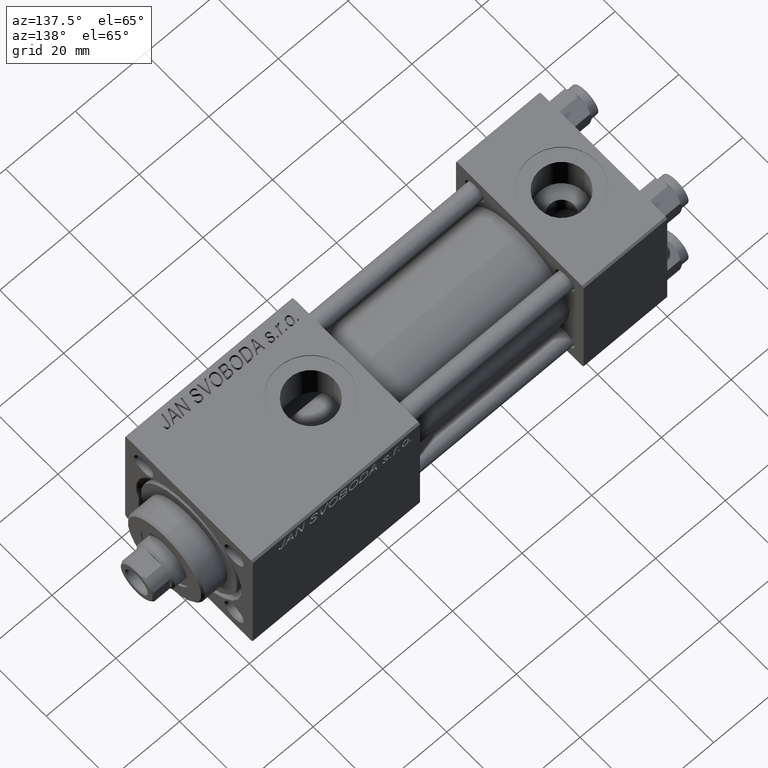
[diagram: clean part render]
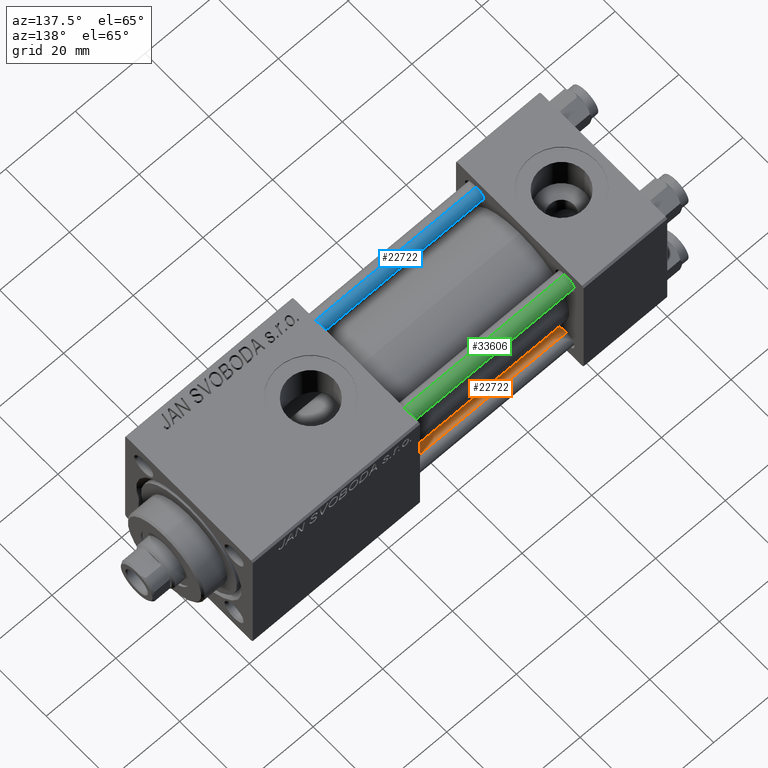
[diagram: same view with three faces highlighted in distinct colors, each labeled with its STEP entity id]
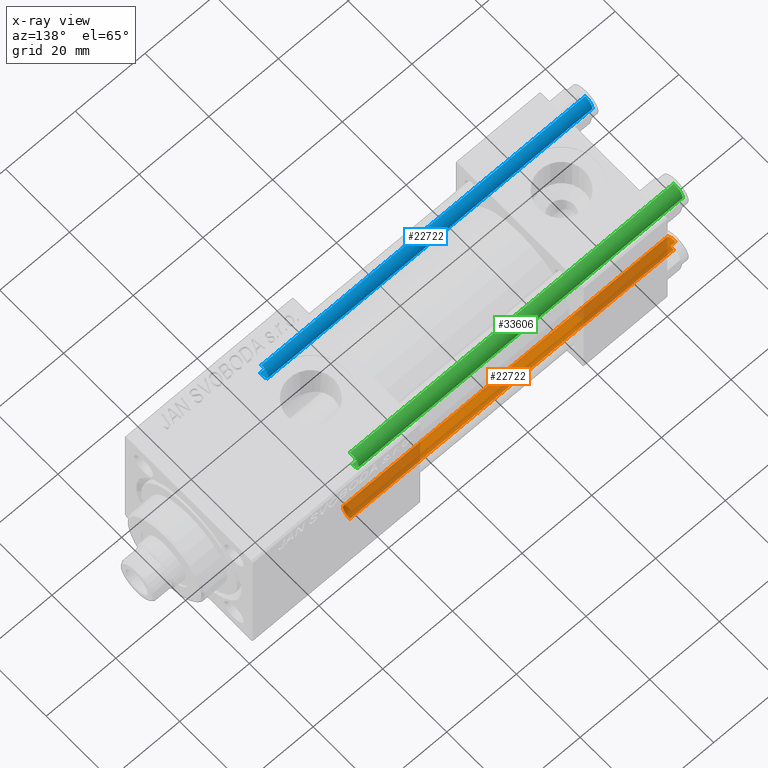
[diagram: x-ray of the same camera — body ghosted, the three highlighted faces saturated]
A machine part, auxiliary view with three faces highlighted in distinct colors.
The next image is the same camera in x-ray (body ghosted, the three faces saturated) — at least one of them is partly hidden behind the body in this view.
Their STEP definitions:

[orange] entity #22722 — the highlighted cylindrical surface (edge-blend (fillet) strip) has radius 2.5 mm, axis along (1, -0, 0).
#153 = CIRCLE ( 'NONE', #36363, 2.500000000000000000 ) ;
#441 = DIRECTION ( 'NONE',  ( -0.000000000000000000, -0.000000000000000000, -1.000000000000000000 ) ) ;
#3326 = DIRECTION ( 'NONE',  ( 1.000000000000000000, 0.000000000000000000, 0.000000000000000000 ) ) ;
#4578 = DIRECTION ( 'NONE',  ( -0.000000000000000000, -0.000000000000000000, -1.000000000000000000 ) ) ;
#5532 = CARTESIAN_POINT ( 'NONE',  ( -2.500000000000000000, 0.000000000000000000, 94.00000000000000000 ) ) ;
#7022 = ORIENTED_EDGE ( 'NONE', *, *, #20169, .T. ) ;
#7613 = VECTOR ( 'NONE', #25574, 1000.000000000000000 ) ;
#7858 = CARTESIAN_POINT ( 'NONE',  ( 0.000000000000000000, 0.000000000000000000, 0.5000000000000004441 ) ) ;
#9465 = VERTEX_POINT ( 'NONE', #40455 ) ;
#12454 = EDGE_CURVE ( 'NONE', #50126, #43928, #30352, .T. ) ;
#13643 = FACE_OUTER_BOUND ( 'NONE', #20688, .T. ) ;
#15207 = CARTESIAN_POINT ( 'NONE',  ( 0.000000000000000000, 0.000000000000000000, 93.50000000000001421 ) ) ;
#16202 = EDGE_CURVE ( 'NONE', #43928, #9465, #30047, .T. ) ;
#16266 = ORIENTED_EDGE ( 'NONE', *, *, #20002, .F. ) ;
#18873 = ORIENTED_EDGE ( 'NONE', *, *, #16202, .T. ) ;
#20002 = EDGE_CURVE ( 'NONE', #50126, #34823, #49398, .T. ) ;
#20009 = DIRECTION ( 'NONE',  ( 1.000000000000000000, 0.000000000000000000, 0.000000000000000000 ) ) ;
#20169 = EDGE_CURVE ( 'NONE', #9465, #34823, #153, .T. ) ;
#20505 = DIRECTION ( 'NONE',  ( -1.000000000000000000, 0.000000000000000000, 0.000000000000000000 ) ) ;
#20688 = EDGE_LOOP ( 'NONE', ( #16266, #33507, #18873, #7022 ) ) ;
#20943 = CARTESIAN_POINT ( 'NONE',  ( 2.500000000000000000, 3.061616997868383141E-16, 94.00000000000000000 ) ) ;
#22722 = ADVANCED_FACE ( 'NONE', ( #13643 ), #40529, .T. ) ;
#23389 = DIRECTION ( 'NONE',  ( 0.000000000000000000, 0.000000000000000000, -1.000000000000000000 ) ) ;
#25574 = DIRECTION ( 'NONE',  ( -0.000000000000000000, -0.000000000000000000, -1.000000000000000000 ) ) ;
#26280 = VECTOR ( 'NONE', #4578, 1000.000000000000000 ) ;
#27826 = AXIS2_PLACEMENT_3D ( 'NONE', #15207, #23389, #3326 ) ;
#29715 = CARTESIAN_POINT ( 'NONE',  ( 0.000000000000000000, 0.000000000000000000, 94.00000000000000000 ) ) ;
#30047 = LINE ( 'NONE', #5532, #7613 ) ;
#30352 = CIRCLE ( 'NONE', #27826, 2.500000000000000000 ) ;
#33507 = ORIENTED_EDGE ( 'NONE', *, *, #12454, .T. ) ;
#34823 = VERTEX_POINT ( 'NONE', #50097 ) ;
#36363 = AXIS2_PLACEMENT_3D ( 'NONE', #7858, #39519, #20009 ) ;
#36425 = CARTESIAN_POINT ( 'NONE',  ( -2.500000000000000000, 0.000000000000000000, 93.50000000000001421 ) ) ;
#39519 = DIRECTION ( 'NONE',  ( -0.000000000000000000, -0.000000000000000000, 1.000000000000000000 ) ) ;
#40455 = CARTESIAN_POINT ( 'NONE',  ( -2.500000000000000000, 0.000000000000000000, 0.5000000000000004441 ) ) ;
#40529 = CYLINDRICAL_SURFACE ( 'NONE', #51605, 2.500000000000000000 ) ;
#43928 = VERTEX_POINT ( 'NONE', #36425 ) ;
#49398 = LINE ( 'NONE', #20943, #26280 ) ;
#50097 = CARTESIAN_POINT ( 'NONE',  ( 2.500000000000000000, 3.061616997868383141E-16, 0.5000000000000004441 ) ) ;
#50126 = VERTEX_POINT ( 'NONE', #50348 ) ;
#50348 = CARTESIAN_POINT ( 'NONE',  ( 2.500000000000000000, 3.061616997868383141E-16, 93.50000000000001421 ) ) ;
#51605 = AXIS2_PLACEMENT_3D ( 'NONE', #29715, #441, #20505 ) ;

[blue] entity #22722 — the highlighted cylindrical surface (edge-blend (fillet) strip) has radius 2.5 mm, axis along (1, 0, -0).
#153 = CIRCLE ( 'NONE', #36363, 2.500000000000000000 ) ;
#441 = DIRECTION ( 'NONE',  ( -0.000000000000000000, -0.000000000000000000, -1.000000000000000000 ) ) ;
#3326 = DIRECTION ( 'NONE',  ( 1.000000000000000000, 0.000000000000000000, 0.000000000000000000 ) ) ;
#4578 = DIRECTION ( 'NONE',  ( -0.000000000000000000, -0.000000000000000000, -1.000000000000000000 ) ) ;
#5532 = CARTESIAN_POINT ( 'NONE',  ( -2.500000000000000000, 0.000000000000000000, 94.00000000000000000 ) ) ;
#7022 = ORIENTED_EDGE ( 'NONE', *, *, #20169, .T. ) ;
#7613 = VECTOR ( 'NONE', #25574, 1000.000000000000000 ) ;
#7858 = CARTESIAN_POINT ( 'NONE',  ( 0.000000000000000000, 0.000000000000000000, 0.5000000000000004441 ) ) ;
#9465 = VERTEX_POINT ( 'NONE', #40455 ) ;
#12454 = EDGE_CURVE ( 'NONE', #50126, #43928, #30352, .T. ) ;
#13643 = FACE_OUTER_BOUND ( 'NONE', #20688, .T. ) ;
#15207 = CARTESIAN_POINT ( 'NONE',  ( 0.000000000000000000, 0.000000000000000000, 93.50000000000001421 ) ) ;
#16202 = EDGE_CURVE ( 'NONE', #43928, #9465, #30047, .T. ) ;
#16266 = ORIENTED_EDGE ( 'NONE', *, *, #20002, .F. ) ;
#18873 = ORIENTED_EDGE ( 'NONE', *, *, #16202, .T. ) ;
#20002 = EDGE_CURVE ( 'NONE', #50126, #34823, #49398, .T. ) ;
#20009 = DIRECTION ( 'NONE',  ( 1.000000000000000000, 0.000000000000000000, 0.000000000000000000 ) ) ;
#20169 = EDGE_CURVE ( 'NONE', #9465, #34823, #153, .T. ) ;
#20505 = DIRECTION ( 'NONE',  ( -1.000000000000000000, 0.000000000000000000, 0.000000000000000000 ) ) ;
#20688 = EDGE_LOOP ( 'NONE', ( #16266, #33507, #18873, #7022 ) ) ;
#20943 = CARTESIAN_POINT ( 'NONE',  ( 2.500000000000000000, 3.061616997868383141E-16, 94.00000000000000000 ) ) ;
#22722 = ADVANCED_FACE ( 'NONE', ( #13643 ), #40529, .T. ) ;
#23389 = DIRECTION ( 'NONE',  ( 0.000000000000000000, 0.000000000000000000, -1.000000000000000000 ) ) ;
#25574 = DIRECTION ( 'NONE',  ( -0.000000000000000000, -0.000000000000000000, -1.000000000000000000 ) ) ;
#26280 = VECTOR ( 'NONE', #4578, 1000.000000000000000 ) ;
#27826 = AXIS2_PLACEMENT_3D ( 'NONE', #15207, #23389, #3326 ) ;
#29715 = CARTESIAN_POINT ( 'NONE',  ( 0.000000000000000000, 0.000000000000000000, 94.00000000000000000 ) ) ;
#30047 = LINE ( 'NONE', #5532, #7613 ) ;
#30352 = CIRCLE ( 'NONE', #27826, 2.500000000000000000 ) ;
#33507 = ORIENTED_EDGE ( 'NONE', *, *, #12454, .T. ) ;
#34823 = VERTEX_POINT ( 'NONE', #50097 ) ;
#36363 = AXIS2_PLACEMENT_3D ( 'NONE', #7858, #39519, #20009 ) ;
#36425 = CARTESIAN_POINT ( 'NONE',  ( -2.500000000000000000, 0.000000000000000000, 93.50000000000001421 ) ) ;
#39519 = DIRECTION ( 'NONE',  ( -0.000000000000000000, -0.000000000000000000, 1.000000000000000000 ) ) ;
#40455 = CARTESIAN_POINT ( 'NONE',  ( -2.500000000000000000, 0.000000000000000000, 0.5000000000000004441 ) ) ;
#40529 = CYLINDRICAL_SURFACE ( 'NONE', #51605, 2.500000000000000000 ) ;
#43928 = VERTEX_POINT ( 'NONE', #36425 ) ;
#49398 = LINE ( 'NONE', #20943, #26280 ) ;
#50097 = CARTESIAN_POINT ( 'NONE',  ( 2.500000000000000000, 3.061616997868383141E-16, 0.5000000000000004441 ) ) ;
#50126 = VERTEX_POINT ( 'NONE', #50348 ) ;
#50348 = CARTESIAN_POINT ( 'NONE',  ( 2.500000000000000000, 3.061616997868383141E-16, 93.50000000000001421 ) ) ;
#51605 = AXIS2_PLACEMENT_3D ( 'NONE', #29715, #441, #20505 ) ;

[green] entity #33606 — the highlighted cylindrical surface (edge-blend (fillet) strip) has radius 2.5 mm, axis along (-1, 0, 0).
#2064 = CARTESIAN_POINT ( 'NONE',  ( 0.000000000000000000, 0.000000000000000000, 0.5000000000000004441 ) ) ;
#4578 = DIRECTION ( 'NONE',  ( -0.000000000000000000, -0.000000000000000000, -1.000000000000000000 ) ) ;
#5532 = CARTESIAN_POINT ( 'NONE',  ( -2.500000000000000000, 0.000000000000000000, 94.00000000000000000 ) ) ;
#6271 = DIRECTION ( 'NONE',  ( 1.000000000000000000, 0.000000000000000000, 0.000000000000000000 ) ) ;
#7613 = VECTOR ( 'NONE', #25574, 1000.000000000000000 ) ;
#8721 = AXIS2_PLACEMENT_3D ( 'NONE', #14906, #38899, #30983 ) ;
#9465 = VERTEX_POINT ( 'NONE', #40455 ) ;
#14710 = DIRECTION ( 'NONE',  ( -0.000000000000000000, -0.000000000000000000, 1.000000000000000000 ) ) ;
#14906 = CARTESIAN_POINT ( 'NONE',  ( 0.000000000000000000, 0.000000000000000000, 94.00000000000000000 ) ) ;
#15201 = CARTESIAN_POINT ( 'NONE',  ( 0.000000000000000000, 0.000000000000000000, 93.50000000000001421 ) ) ;
#16202 = EDGE_CURVE ( 'NONE', #43928, #9465, #30047, .T. ) ;
#17643 = EDGE_CURVE ( 'NONE', #43928, #50126, #17805, .T. ) ;
#17805 = CIRCLE ( 'NONE', #36286, 2.500000000000000000 ) ;
#18651 = DIRECTION ( 'NONE',  ( 1.000000000000000000, 0.000000000000000000, 0.000000000000000000 ) ) ;
#19006 = ORIENTED_EDGE ( 'NONE', *, *, #20002, .T. ) ;
#19669 = AXIS2_PLACEMENT_3D ( 'NONE', #2064, #14710, #6271 ) ;
#20002 = EDGE_CURVE ( 'NONE', #50126, #34823, #49398, .T. ) ;
#20943 = CARTESIAN_POINT ( 'NONE',  ( 2.500000000000000000, 3.061616997868383141E-16, 94.00000000000000000 ) ) ;
#24730 = CIRCLE ( 'NONE', #19669, 2.500000000000000000 ) ;
#25574 = DIRECTION ( 'NONE',  ( -0.000000000000000000, -0.000000000000000000, -1.000000000000000000 ) ) ;
#26280 = VECTOR ( 'NONE', #4578, 1000.000000000000000 ) ;
#26795 = DIRECTION ( 'NONE',  ( 0.000000000000000000, 0.000000000000000000, -1.000000000000000000 ) ) ;
#30047 = LINE ( 'NONE', #5532, #7613 ) ;
#30983 = DIRECTION ( 'NONE',  ( -1.000000000000000000, 0.000000000000000000, 0.000000000000000000 ) ) ;
#32856 = ORIENTED_EDGE ( 'NONE', *, *, #16202, .F. ) ;
#33212 = EDGE_CURVE ( 'NONE', #34823, #9465, #24730, .T. ) ;
#33606 = ADVANCED_FACE ( 'NONE', ( #46810 ), #34159, .T. ) ;
#34037 = EDGE_LOOP ( 'NONE', ( #49983, #19006, #35885, #32856 ) ) ;
#34159 = CYLINDRICAL_SURFACE ( 'NONE', #8721, 2.500000000000000000 ) ;
#34823 = VERTEX_POINT ( 'NONE', #50097 ) ;
#35885 = ORIENTED_EDGE ( 'NONE', *, *, #33212, .T. ) ;
#36286 = AXIS2_PLACEMENT_3D ( 'NONE', #15201, #26795, #18651 ) ;
#36425 = CARTESIAN_POINT ( 'NONE',  ( -2.500000000000000000, 0.000000000000000000, 93.50000000000001421 ) ) ;
#38899 = DIRECTION ( 'NONE',  ( -0.000000000000000000, -0.000000000000000000, -1.000000000000000000 ) ) ;
#40455 = CARTESIAN_POINT ( 'NONE',  ( -2.500000000000000000, 0.000000000000000000, 0.5000000000000004441 ) ) ;
#43928 = VERTEX_POINT ( 'NONE', #36425 ) ;
#46810 = FACE_OUTER_BOUND ( 'NONE', #34037, .T. ) ;
#49398 = LINE ( 'NONE', #20943, #26280 ) ;
#49983 = ORIENTED_EDGE ( 'NONE', *, *, #17643, .T. ) ;
#50097 = CARTESIAN_POINT ( 'NONE',  ( 2.500000000000000000, 3.061616997868383141E-16, 0.5000000000000004441 ) ) ;
#50126 = VERTEX_POINT ( 'NONE', #50348 ) ;
#50348 = CARTESIAN_POINT ( 'NONE',  ( 2.500000000000000000, 3.061616997868383141E-16, 93.50000000000001421 ) ) ;